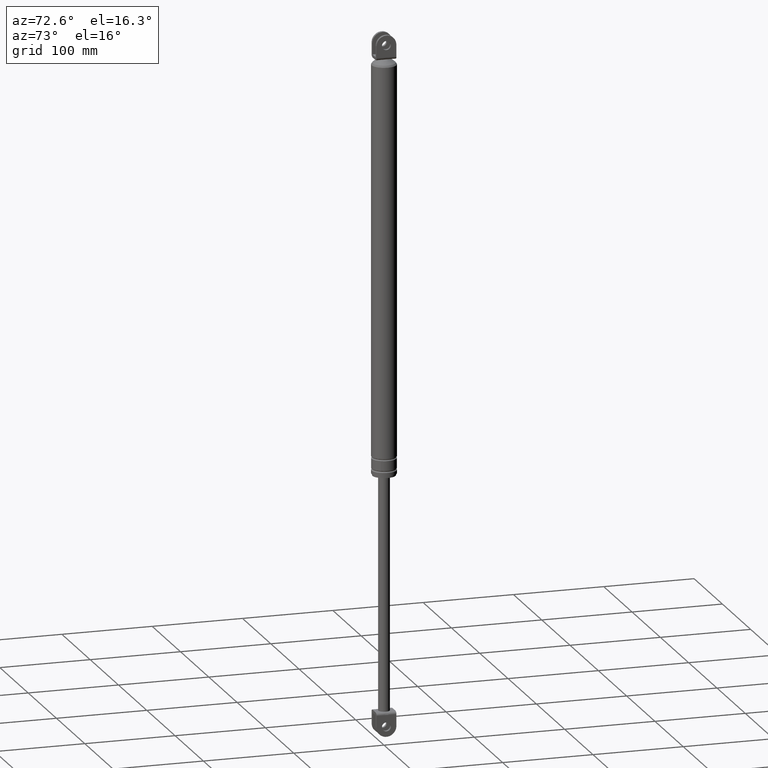
[diagram: clean part render]
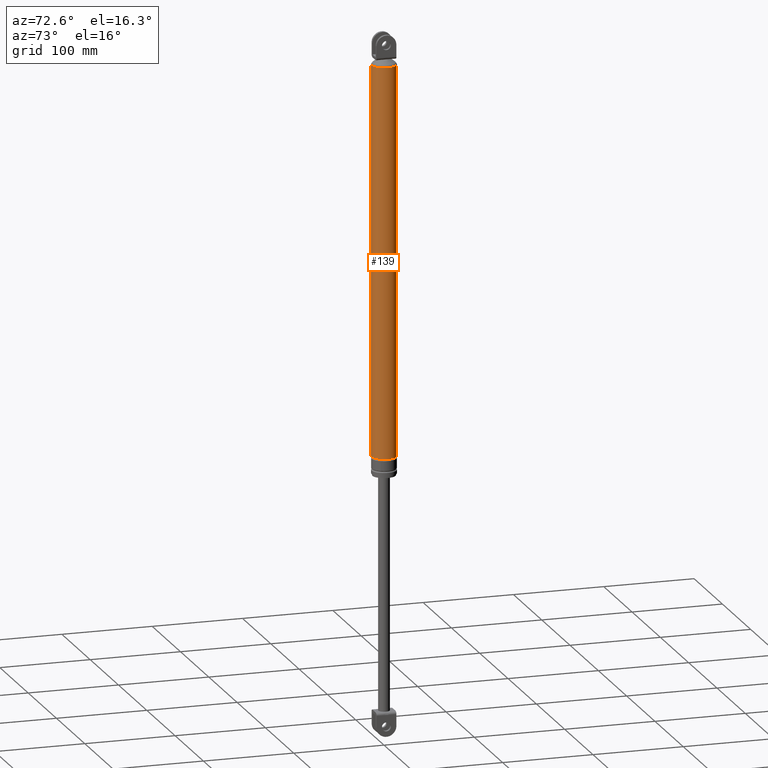
[diagram: same view with one face highlighted and labeled with its STEP entity id]
A machine part, auxiliary view. The second image highlights one B-rep face of the part: STEP entity #139.
In plain terms, the highlighted cylindrical surface (edge-blend (fillet) strip) has radius 13.7 mm, axis along (-0, 0, 1).
Its self-contained STEP definition (entity closure, byte-faithful):
#139=ADVANCED_FACE('',(#451),#450,.T.);
#450=CYLINDRICAL_SURFACE('',#1389,1.37000000000E+001);
#451=FACE_OUTER_BOUND('',#1390,.T.);
#1386=CARTESIAN_POINT('',(-3.41546421043E-012,4.03842046607E-012,5.12774968225E+002));
#1387=DIRECTION('',(-1.51010197831E-014,1.78416878900E-014,1.00000000000E+000));
#1388=DIRECTION('',(-4.84219732255E-001,-8.74946427443E-001,8.29830932274E-015));
#1389=AXIS2_PLACEMENT_3D('',#1386,#1387,#1388);
#1390=EDGE_LOOP('',(#2333,#2334,#2335,#2336,#2337,#2338,#2339,#2340,#2341,#2342));
#2333=ORIENTED_EDGE('',*,*,#2641,.T.);
#2334=ORIENTED_EDGE('',*,*,#2638,.T.);
#2335=ORIENTED_EDGE('',*,*,#2637,.T.);
#2336=ORIENTED_EDGE('',*,*,#2636,.T.);
#2337=ORIENTED_EDGE('',*,*,#2635,.T.);
#2338=ORIENTED_EDGE('',*,*,#2643,.F.);
#2339=ORIENTED_EDGE('',*,*,#2644,.F.);
#2340=ORIENTED_EDGE('',*,*,#2645,.F.);
#2341=ORIENTED_EDGE('',*,*,#2646,.F.);
#2342=ORIENTED_EDGE('',*,*,#2647,.T.);
#2635=EDGE_CURVE('',#3304,#3296,#3305,.T.);
#2636=EDGE_CURVE('',#3311,#3304,#3312,.T.);
#2637=EDGE_CURVE('',#3318,#3311,#3319,.T.);
#2638=EDGE_CURVE('',#3325,#3318,#3326,.T.);
#2641=EDGE_CURVE('',#3344,#3325,#3345,.T.);
#2643=EDGE_CURVE('',#3357,#3296,#3358,.T.);
#2644=EDGE_CURVE('',#3364,#3357,#3365,.T.);
#2645=EDGE_CURVE('',#3371,#3364,#3372,.T.);
#2646=EDGE_CURVE('',#3378,#3371,#3379,.T.);
#2647=EDGE_CURVE('',#3378,#3344,#3385,.T.);
#3296=VERTEX_POINT('',#4390);
#3304=VERTEX_POINT('',#4396);
#3305=CIRCLE('',#4400,1.37000000066E+001);
#3311=VERTEX_POINT('',#4401);
#3312=CIRCLE('',#4405,1.37000096886E+001);
#3318=VERTEX_POINT('',#4406);
#3319=CIRCLE('',#4410,1.37000100924E+001);
#3325=VERTEX_POINT('',#4411);
#3326=CIRCLE('',#4415,1.37000000007E+001);
#3344=VERTEX_POINT('',#4420);
#3345=CIRCLE('',#4424,1.37000000007E+001);
#3357=VERTEX_POINT('',#4429);
#3358=(BOUNDED_CURVE() B_SPLINE_CURVE(1,(#4430,#4431),.UNSPECIFIED.,.F.,.F.) B_SPLINE_CURVE_WITH_KNOTS((2,2),(2.21729504881E-002,9.77827049451E-001),.UNSPECIFIED.) CURVE() GEOMETRIC_REPRESENTATION_ITEM() RATIONAL_B_SPLINE_CURVE((1.00000000000E+000,1.00000000000E+000)) REPRESENTATION_ITEM('') );
#3364=VERTEX_POINT('',#4432);
#3365=CIRCLE('',#4436,1.37000000000E+001);
#3371=VERTEX_POINT('',#4437);
#3372=CIRCLE('',#4441,1.37000000000E+001);
#3378=VERTEX_POINT('',#4442);
#3379=CIRCLE('',#4446,1.37000000000E+001);
#3385=(BOUNDED_CURVE() B_SPLINE_CURVE(1,(#4447,#4448),.UNSPECIFIED.,.F.,.F.) B_SPLINE_CURVE_WITH_KNOTS((2,2),(2.21729505251E-002,9.77827049435E-001),.UNSPECIFIED.) CURVE() GEOMETRIC_REPRESENTATION_ITEM() RATIONAL_B_SPLINE_CURVE((7.50000000000E-001,7.50000000000E-001)) REPRESENTATION_ITEM('') );
#4390=CARTESIAN_POINT('',(-6.63381033186E+000,-1.19867660559E+001,5.01999969020E+002));
#4396=CARTESIAN_POINT('',(8.36364993373E-001,-1.36744467372E+001,5.01999969002E+002));
#4397=CARTESIAN_POINT('',(2.92622415188E-009,5.96568305866E-009,5.01999968988E+002));
#4398=DIRECTION('',(-3.14170866277E-009,-9.88007666999E-010,-1.00000000000E+000));
#4399=DIRECTION('',(-6.10485398567E-002,9.98134798402E-001,-7.94368107002E-010));
#4400=AXIS2_PLACEMENT_3D('',#4397,#4398,#4399);
#4401=CARTESIAN_POINT('',(1.01007050447E+001,-9.25557980743E+000,5.01999969002E+002));
#4402=CARTESIAN_POINT('',(-4.49910012268E-006,9.43255603758E-006,5.01999969002E+002));
#4403=DIRECTION('',(-7.16440551989E-014,-3.60695896624E-013,-1.00000000000E+000));
#4404=DIRECTION('',(-7.37277547490E-001,6.75589977699E-001,-1.90860979447E-013));
#4405=AXIS2_PLACEMENT_3D('',#4402,#4403,#4404);
#4406=CARTESIAN_POINT('',(1.37000000000E+001,0.00000000000E+000,5.01999969000E+002));
#4407=CARTESIAN_POINT('',(-1.00923997657E-005,3.92624427104E-006,5.01999969006E+002));
#4408=DIRECTION('',(-4.32254465031E-010,2.34711631777E-014,-1.00000000000E+000));
#4409=DIRECTION('',(-1.00000000000E+000,2.86586961948E-007,4.32254465038E-010));
#4410=AXIS2_PLACEMENT_3D('',#4407,#4408,#4409);
#4411=CARTESIAN_POINT('',(8.01563413477E+000,1.11103379542E+001,5.01999969000E+002));
#4412=CARTESIAN_POINT('',(7.42980788004E-010,3.44965833676E-010,5.01999969000E+002));
#4413=DIRECTION('',(-8.33421791773E-012,1.65210785490E-014,-1.00000000000E+000));
#4414=DIRECTION('',(-5.85082783903E-001,-8.10973572923E-001,4.86280926287E-012));
#4415=AXIS2_PLACEMENT_3D('',#4412,#4413,#4414);
#4420=CARTESIAN_POINT('',(6.63306851463E+000,1.19871765699E+001,5.01999969000E+002));
#4421=CARTESIAN_POINT('',(7.42980788004E-010,3.44965833676E-010,5.01999969000E+002));
#4422=DIRECTION('',(-8.33421791773E-012,1.65210785490E-014,-1.00000000000E+000));
#4423=DIRECTION('',(-5.85082783903E-001,-8.10973572923E-001,4.86280926287E-012));
#4424=AXIS2_PLACEMENT_3D('',#4421,#4422,#4423);
#4429=CARTESIAN_POINT('',(-6.63381033193E+000,-1.19867660561E+001,7.10000000000E+001));
#4430=CARTESIAN_POINT('',(-6.63381033189E+000,-1.19867660560E+001,7.09999999833E+001));
#4431=CARTESIAN_POINT('',(-6.63381033189E+000,-1.19867660560E+001,5.01999969013E+002));
#4432=CARTESIAN_POINT('',(1.72154769155E-001,-1.36989183054E+001,7.10000000000E+001));
#4433=CARTESIAN_POINT('',(-4.76809702832E-011,-2.81028533777E-011,7.10000000000E+001));
#4434=DIRECTION('',(-5.65164330075E-016,-4.42940369744E-015,-1.00000000000E+000));
#4435=DIRECTION('',(1.25660415476E-002,-9.99921044183E-001,4.42195209180E-015));
#4436=AXIS2_PLACEMENT_3D('',#4433,#4434,#4435);
#4437=CARTESIAN_POINT('',(9.55344792334E-001,-1.36666497844E+001,7.10000000000E+001));
#4438=CARTESIAN_POINT('',(-4.76809702832E-011,-2.81028533777E-011,7.10000000000E+001));
#4439=DIRECTION('',(-5.65164330075E-016,-4.42940369744E-015,-1.00000000000E+000));
#4440=DIRECTION('',(1.25660415476E-002,-9.99921044183E-001,4.42195209180E-015));
#4441=AXIS2_PLACEMENT_3D('',#4438,#4439,#4440);
#4442=CARTESIAN_POINT('',(6.63493738425E+000,1.19861422446E+001,7.10000000000E+001));
#4443=CARTESIAN_POINT('',(-4.76809702832E-011,-2.81028533777E-011,7.10000000000E+001));
#4444=DIRECTION('',(-5.65164330075E-016,-4.42940369744E-015,-1.00000000000E+000));
#4445=DIRECTION('',(1.25660415476E-002,-9.99921044183E-001,4.42195209180E-015));
#4446=AXIS2_PLACEMENT_3D('',#4443,#4444,#4445);
#4447=CARTESIAN_POINT('',(6.63381033189E+000,1.19867660560E+001,7.10000000000E+001));
#4448=CARTESIAN_POINT('',(6.63381033189E+000,1.19867660560E+001,5.01999969006E+002));